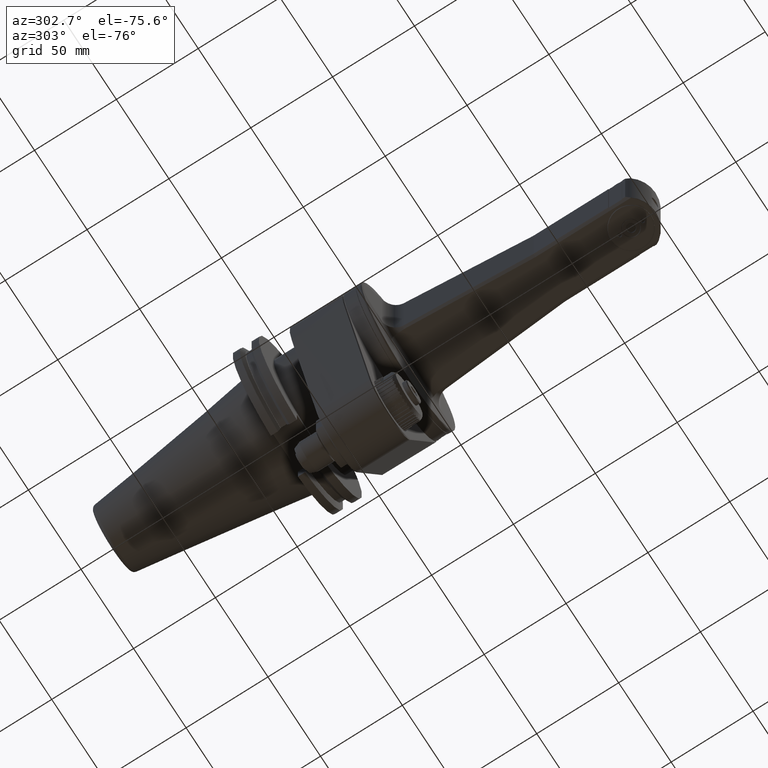
[diagram: clean part render]
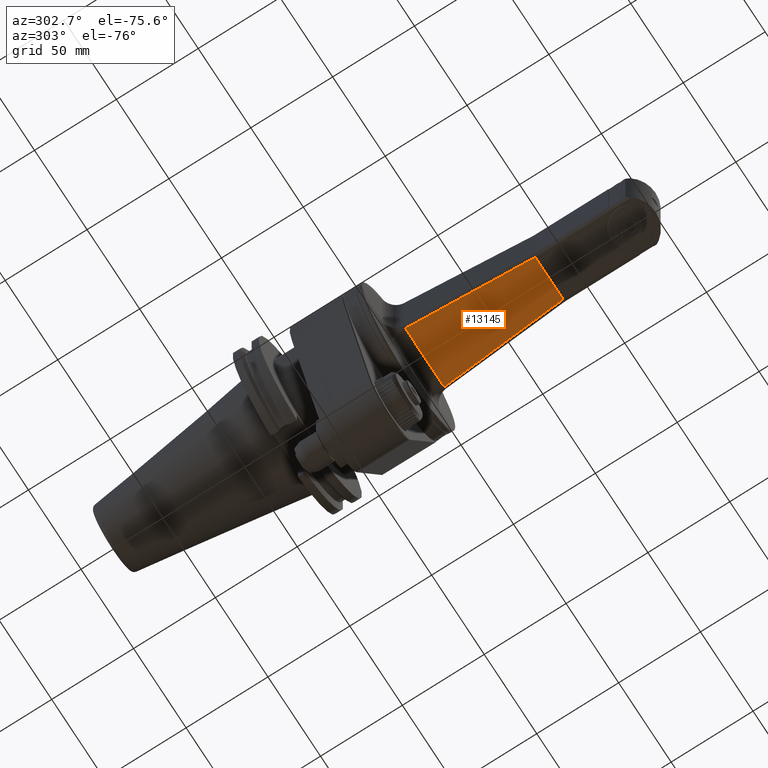
[diagram: same view with one face highlighted and labeled with its STEP entity id]
A machine part, auxiliary view. The second image highlights one B-rep face of the part: STEP entity #13145.
In plain terms, the highlighted planar face has unit normal (0, 0.0538, 0.9986).
Its self-contained STEP definition (entity closure, byte-faithful):
#189=(
BOUNDED_CURVE()
B_SPLINE_CURVE(2,(#19408,#19409,#19410),.UNSPECIFIED.,.F.,.F.)
B_SPLINE_CURVE_WITH_KNOTS((3,3),(-7.75152909606526,-0.119091922100069),
 .UNSPECIFIED.)
CURVE()
GEOMETRIC_REPRESENTATION_ITEM()
RATIONAL_B_SPLINE_CURVE((1.00044518704217,1.0124340238872,1.0003819593551))
REPRESENTATION_ITEM('')
);
#190=(
BOUNDED_CURVE()
B_SPLINE_CURVE(2,(#19411,#19412,#19413),.UNSPECIFIED.,.F.,.F.)
B_SPLINE_CURVE_WITH_KNOTS((3,3),(-7.77160244281559,-0.139165268834204),
 .UNSPECIFIED.)
CURVE()
GEOMETRIC_REPRESENTATION_ITEM()
RATIONAL_B_SPLINE_CURVE((1.00038195935506,1.01243402388723,1.00044518704216))
REPRESENTATION_ITEM('')
);
#465=PLANE('',#13988);
#904=FACE_OUTER_BOUND('',#1683,.T.);
#1683=EDGE_LOOP('',(#8990,#8991,#8992,#8993));
#3105=LINE('',#19401,#4270);
#3106=LINE('',#19407,#4271);
#4270=VECTOR('',#15400,26.53299832284);
#4271=VECTOR('',#15405,36.97195613848);
#5580=VERTEX_POINT('',#19282);
#5601=VERTEX_POINT('',#19399);
#5603=VERTEX_POINT('',#19405);
#5604=VERTEX_POINT('',#19406);
#6935=EDGE_CURVE('',#5601,#5580,#3105,.T.);
#6937=EDGE_CURVE('',#5603,#5604,#3106,.T.);
#6938=EDGE_CURVE('',#5604,#5580,#189,.T.);
#6939=EDGE_CURVE('',#5601,#5603,#190,.T.);
#8990=ORIENTED_EDGE('',*,*,#6937,.T.);
#8991=ORIENTED_EDGE('',*,*,#6938,.T.);
#8992=ORIENTED_EDGE('',*,*,#6935,.F.);
#8993=ORIENTED_EDGE('',*,*,#6939,.T.);
#13145=ADVANCED_FACE('',(#904),#465,.F.);
#13988=AXIS2_PLACEMENT_3D('',#19404,#15403,#15404);
#15400=DIRECTION('',(1.,0.,0.));
#15403=DIRECTION('center_axis',(0.,0.0538141241413221,0.998550970177738));
#15404=DIRECTION('ref_axis',(0.,0.998550970177738,-0.0538141241413221));
#15405=DIRECTION('',(1.,0.,0.));
#19282=CARTESIAN_POINT('',(13.26649916142,50.,-20.));
#19399=CARTESIAN_POINT('',(-13.26649916142,50.,-20.));
#19401=CARTESIAN_POINT('',(-13.26649916142,50.,-20.));
#19404=CARTESIAN_POINT('Origin',(54.,50.,-20.));
#19405=CARTESIAN_POINT('',(-18.48597806924,125.9703739401,-24.09421176923));
#19406=CARTESIAN_POINT('',(18.48597806924,125.9703739401,-24.09421176923));
#19407=CARTESIAN_POINT('',(-18.48597806924,125.9703739401,-24.09421176923));
#19408=CARTESIAN_POINT('Ctrl Pts',(18.4859780692318,125.970373940072,-24.0942117692259));
#19409=CARTESIAN_POINT('Ctrl Pts',(15.5014850121324,81.7411739211092,-21.7106021873654));
#19410=CARTESIAN_POINT('Ctrl Pts',(13.2664991614167,50.0000000000002,-20.));
#19411=CARTESIAN_POINT('Ctrl Pts',(-13.2664991614088,49.9999999998873,-19.9999999999939));
#19412=CARTESIAN_POINT('Ctrl Pts',(-15.501485012128,81.7411739210439,-21.7106021873619));
#19413=CARTESIAN_POINT('Ctrl Pts',(-18.485978069234,125.970373940104,-24.0942117692277));